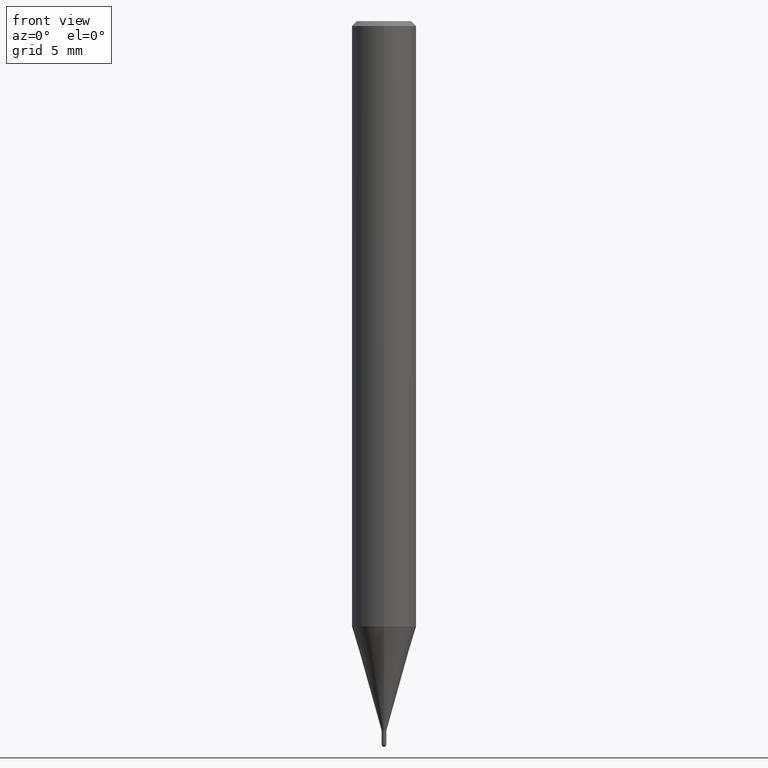
[diagram: clean part render]
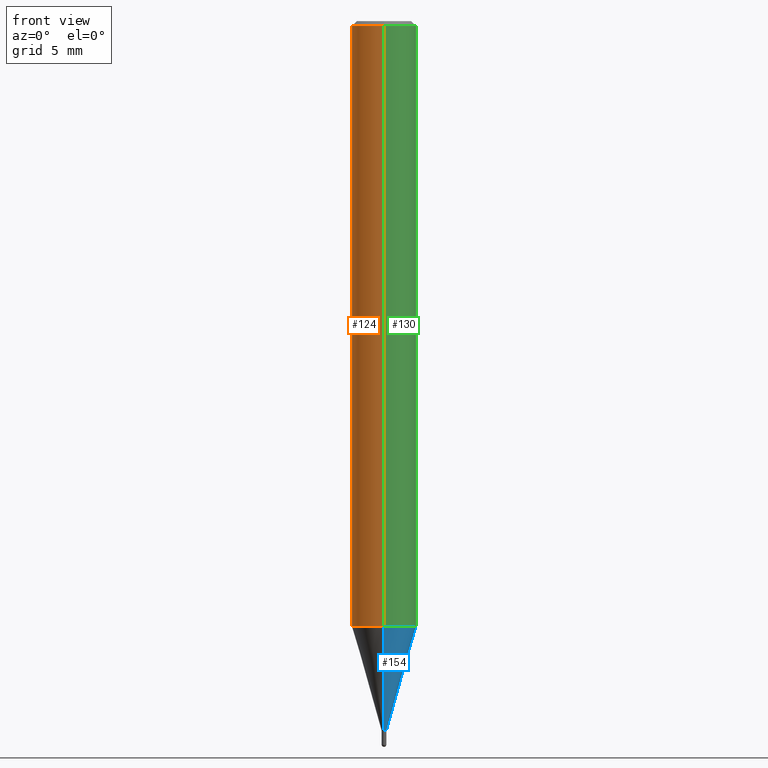
[diagram: same view with three faces highlighted in distinct colors, each labeled with its STEP entity id]
A machine part, front view with three faces highlighted in distinct colors.
Their STEP definitions:

[orange] entity #124 — the highlighted cylindrical surface (edge-blend (fillet) strip) has radius 2 mm, axis along (-0, -0, 1).
#114=VERTEX_POINT('',#258);
#122=EDGE_CURVE('',#156,#136,#266,.T.);
#124=ADVANCED_FACE('',(#268),#269,.T.);
#134=EDGE_CURVE('',#136,#114,#282,.T.);
#136=VERTEX_POINT('',#284);
#146=EDGE_CURVE('',#208,#156,#295,.T.);
#156=VERTEX_POINT('',#306);
#198=EDGE_CURVE('',#208,#114,#351,.T.);
#208=VERTEX_POINT('',#362);
#258=CARTESIAN_POINT('',(0.0,2.0,-37.531));
#266=CIRCLE('',#425,2.0);
#268=FACE_OUTER_BOUND('',#427,.T.);
#269=CYLINDRICAL_SURFACE('',#428,2.0);
#282=LINE('',#442,#443);
#284=CARTESIAN_POINT('',(0.0,2.0,-0.299999999999997));
#295=LINE('',#460,#461);
#306=CARTESIAN_POINT('',(2.44921270764475E-016,-2.0,-0.299999999999997));
#351=CIRCLE('',#533,2.0);
#362=CARTESIAN_POINT('',(2.44921270764475E-016,-2.0,-37.531));
#425=AXIS2_PLACEMENT_3D('',#593,#594,#595);
#427=EDGE_LOOP('',(#597,#598,#599,#600));
#428=AXIS2_PLACEMENT_3D('',#601,#602,#603);
#442=CARTESIAN_POINT('',(-2.44921270764475E-016,2.0,-18.9155));
#443=VECTOR('',#624,1.0);
#460=CARTESIAN_POINT('',(2.44921270764475E-016,-2.0,-18.9155));
#461=VECTOR('',#635,1.0);
#533=AXIS2_PLACEMENT_3D('',#696,#697,#698);
#593=CARTESIAN_POINT('',(0.0,0.0,-0.299999999999997));
#594=DIRECTION('',(0.0,0.0,-1.0));
#595=DIRECTION('',(0.0,1.0,0.0));
#597=ORIENTED_EDGE('',*,*,#134,.T.);
#598=ORIENTED_EDGE('',*,*,#198,.F.);
#599=ORIENTED_EDGE('',*,*,#146,.T.);
#600=ORIENTED_EDGE('',*,*,#122,.T.);
#601=CARTESIAN_POINT('',(0.0,0.0,-18.9155));
#602=DIRECTION('',(-0.0,-0.0,1.0));
#603=DIRECTION('',(0.0,1.0,0.0));
#624=DIRECTION('',(0.0,0.0,-1.0));
#635=DIRECTION('',(-0.0,-0.0,1.0));
#696=CARTESIAN_POINT('',(0.0,0.0,-37.531));
#697=DIRECTION('',(0.0,0.0,-1.0));
#698=DIRECTION('',(0.0,1.0,0.0));

[blue] entity #154 — the highlighted conical surface has half-angle 16 deg.
#98=EDGE_CURVE('',#116,#100,#239,.T.);
#100=VERTEX_POINT('',#241);
#116=VERTEX_POINT('',#260);
#126=VERTEX_POINT('',#271);
#148=EDGE_CURVE('',#170,#116,#297,.T.);
#154=ADVANCED_FACE('',(#303),#304,.T.);
#170=VERTEX_POINT('',#323);
#182=EDGE_CURVE('',#126,#170,#335,.T.);
#194=EDGE_CURVE('',#126,#100,#347,.T.);
#239=LINE('',#391,#392);
#241=CARTESIAN_POINT('',(2.44915147732706E-016,-1.99995,-37.531));
#260=CARTESIAN_POINT('',(1.77506690986553E-017,-0.14495,-44.0));
#271=CARTESIAN_POINT('',(0.0,1.99995,-37.531));
#297=CIRCLE('',#464,0.14495);
#303=FACE_OUTER_BOUND('',#472,.T.);
#304=CONICAL_SURFACE('',#473,1.07245,0.279258979430111);
#323=CARTESIAN_POINT('',(0.0,0.14495,-44.0));
#335=LINE('',#513,#514);
#347=CIRCLE('',#528,1.99995);
#391=CARTESIAN_POINT('',(1.31332908415681E-016,-1.07245,-40.7655));
#392=VECTOR('',#562,1.0);
#464=AXIS2_PLACEMENT_3D('',#636,#637,#638);
#472=EDGE_LOOP('',(#641,#642,#643,#644));
#473=AXIS2_PLACEMENT_3D('',#645,#646,#647);
#513=CARTESIAN_POINT('',(-1.31332908415681E-016,1.07245,-40.7655));
#514=VECTOR('',#690,1.0);
#528=AXIS2_PLACEMENT_3D('',#693,#694,#695);
#562=DIRECTION('',(3.37554672384358E-017,-0.275643410905672,0.961259959648943));
#636=CARTESIAN_POINT('',(0.0,0.0,-44.0));
#637=DIRECTION('',(0.0,0.0,-1.0));
#638=DIRECTION('',(0.0,1.0,0.0));
#641=ORIENTED_EDGE('',*,*,#182,.F.);
#642=ORIENTED_EDGE('',*,*,#194,.T.);
#643=ORIENTED_EDGE('',*,*,#98,.F.);
#644=ORIENTED_EDGE('',*,*,#148,.F.);
#645=CARTESIAN_POINT('',(0.0,0.0,-40.7655));
#646=DIRECTION('',(-0.0,-0.0,1.0));
#647=DIRECTION('',(0.0,1.0,0.0));
#690=DIRECTION('',(3.37554672384358E-017,-0.275643410905672,-0.961259959648943));
#693=CARTESIAN_POINT('',(0.0,0.0,-37.531));
#694=DIRECTION('',(0.0,0.0,-1.0));
#695=DIRECTION('',(0.0,1.0,0.0));

[green] entity #130 — the highlighted cylindrical surface (edge-blend (fillet) strip) has radius 2 mm, axis along (-0, -0, 1).
#114=VERTEX_POINT('',#258);
#130=ADVANCED_FACE('',(#276),#277,.T.);
#134=EDGE_CURVE('',#136,#114,#282,.T.);
#136=VERTEX_POINT('',#284);
#142=EDGE_CURVE('',#114,#208,#290,.T.);
#146=EDGE_CURVE('',#208,#156,#295,.T.);
#156=VERTEX_POINT('',#306);
#204=EDGE_CURVE('',#136,#156,#358,.T.);
#208=VERTEX_POINT('',#362);
#258=CARTESIAN_POINT('',(0.0,2.0,-37.531));
#276=FACE_OUTER_BOUND('',#435,.T.);
#277=CYLINDRICAL_SURFACE('',#436,2.0);
#282=LINE('',#442,#443);
#284=CARTESIAN_POINT('',(0.0,2.0,-0.299999999999997));
#290=CIRCLE('',#454,2.0);
#295=LINE('',#460,#461);
#306=CARTESIAN_POINT('',(2.44921270764475E-016,-2.0,-0.299999999999997));
#358=CIRCLE('',#542,2.0);
#362=CARTESIAN_POINT('',(2.44921270764475E-016,-2.0,-37.531));
#435=EDGE_LOOP('',(#611,#612,#613,#614));
#436=AXIS2_PLACEMENT_3D('',#615,#616,#617);
#442=CARTESIAN_POINT('',(-2.44921270764475E-016,2.0,-18.9155));
#443=VECTOR('',#624,1.0);
#454=AXIS2_PLACEMENT_3D('',#626,#627,#628);
#460=CARTESIAN_POINT('',(2.44921270764475E-016,-2.0,-18.9155));
#461=VECTOR('',#635,1.0);
#542=AXIS2_PLACEMENT_3D('',#710,#711,#712);
#611=ORIENTED_EDGE('',*,*,#134,.F.);
#612=ORIENTED_EDGE('',*,*,#204,.T.);
#613=ORIENTED_EDGE('',*,*,#146,.F.);
#614=ORIENTED_EDGE('',*,*,#142,.F.);
#615=CARTESIAN_POINT('',(0.0,0.0,-18.9155));
#616=DIRECTION('',(-0.0,-0.0,1.0));
#617=DIRECTION('',(0.0,1.0,0.0));
#624=DIRECTION('',(0.0,0.0,-1.0));
#626=CARTESIAN_POINT('',(0.0,0.0,-37.531));
#627=DIRECTION('',(0.0,0.0,-1.0));
#628=DIRECTION('',(0.0,1.0,0.0));
#635=DIRECTION('',(-0.0,-0.0,1.0));
#710=CARTESIAN_POINT('',(0.0,0.0,-0.299999999999997));
#711=DIRECTION('',(0.0,0.0,-1.0));
#712=DIRECTION('',(0.0,1.0,0.0));